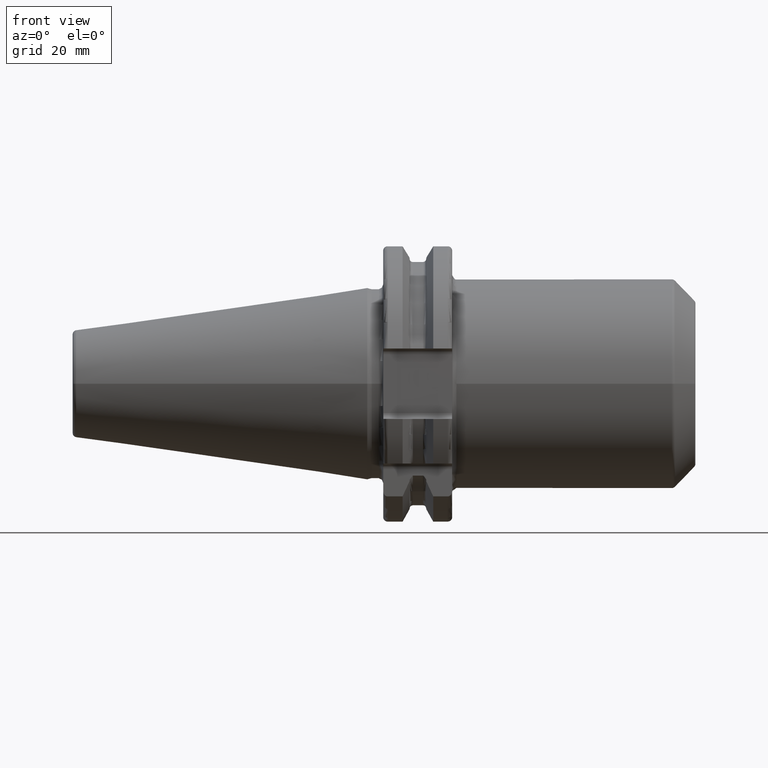
[diagram: clean part render]
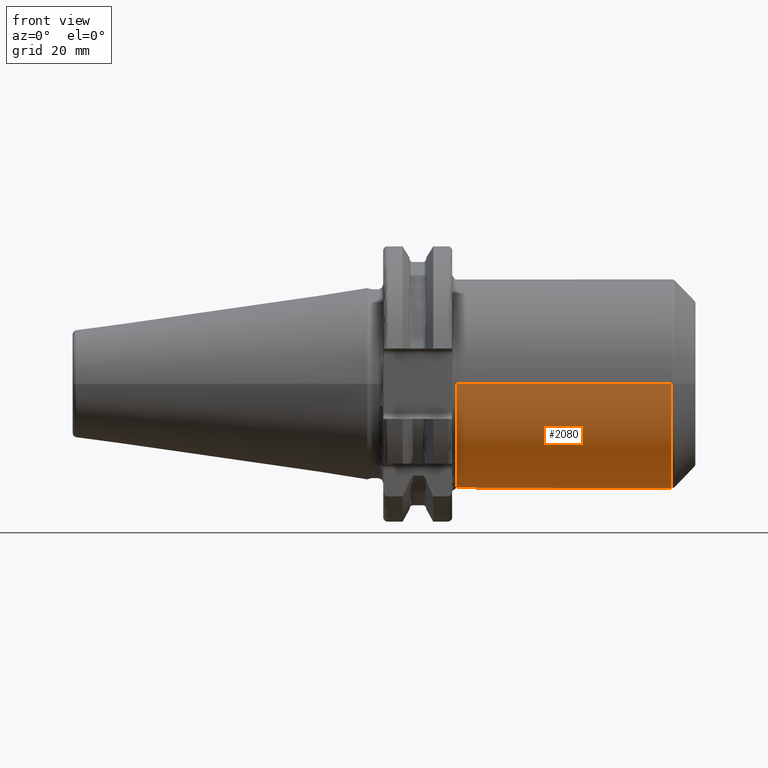
[diagram: same view with one face highlighted and labeled with its STEP entity id]
A machine part, front view. The second image highlights one B-rep face of the part: STEP entity #2080.
In plain terms, the highlighted cylindrical surface (partial cylindrical patch) has radius 24 mm, axis along (1, 0, 0).
Its self-contained STEP definition (entity closure, byte-faithful):
#318=DIRECTION('',(1.E0,0.E0,0.E0));
#319=VECTOR('',#318,7.1E0);
#320=CARTESIAN_POINT('',(2.005E1,2.255E1,-8.215686216014E0));
#321=LINE('',#320,#319);
#322=CARTESIAN_POINT('',(2.005E1,0.E0,0.E0));
#323=DIRECTION('',(1.E0,0.E0,0.E0));
#324=DIRECTION('',(0.E0,-1.E0,0.E0));
#325=AXIS2_PLACEMENT_3D('',#322,#323,#324);
#327=DIRECTION('',(-9.999999999942E-1,3.608921727415E-11,-3.414198783986E-6));
#328=VECTOR('',#327,4.953578643792E1);
#329=CARTESIAN_POINT('',(6.958578643763E1,-2.4E1,2.005392351092E-11));
#330=LINE('',#329,#328);
#331=CARTESIAN_POINT('',(6.958578643763E1,0.E0,0.E0));
#332=DIRECTION('',(-1.E0,0.E0,0.E0));
#333=DIRECTION('',(0.E0,1.E0,0.E0));
#334=AXIS2_PLACEMENT_3D('',#331,#332,#333);
#336=DIRECTION('',(-1.E0,0.E0,4.726708288364E-13));
#337=VECTOR('',#336,4.243578643763E1);
#338=CARTESIAN_POINT('',(6.958578643763E1,2.4E1,-2.005501467503E-11));
#339=LINE('',#338,#337);
#340=CARTESIAN_POINT('',(2.715E1,0.E0,0.E0));
#341=DIRECTION('',(1.E0,0.E0,0.E0));
#342=DIRECTION('',(0.E0,9.395833333333E-1,-3.423202590006E-1));
#343=AXIS2_PLACEMENT_3D('',#340,#341,#342);
#1614=CARTESIAN_POINT('',(6.958578643763E1,2.4E1,0.E0));
#1615=CARTESIAN_POINT('',(6.958578643763E1,-2.4E1,0.E0));
#1616=VERTEX_POINT('',#1614);
#1617=VERTEX_POINT('',#1615);
#1622=CARTESIAN_POINT('',(2.005E1,-2.399999999821E1,-1.691250017662E-4));
#1623=VERTEX_POINT('',#1622);
#1628=CARTESIAN_POINT('',(2.715E1,2.4E1,0.E0));
#1629=VERTEX_POINT('',#1628);
#1630=CARTESIAN_POINT('',(2.005E1,2.255E1,-8.215686216014E0));
#1631=CARTESIAN_POINT('',(2.715E1,2.255E1,-8.215686216014E0));
#1632=VERTEX_POINT('',#1630);
#1633=VERTEX_POINT('',#1631);
#2066=CARTESIAN_POINT('',(1.62525E1,0.E0,0.E0));
#2067=DIRECTION('',(1.E0,0.E0,0.E0));
#2068=DIRECTION('',(0.E0,-1.E0,0.E0));
#2069=AXIS2_PLACEMENT_3D('',#2066,#2067,#2068);
#2070=CYLINDRICAL_SURFACE('',#2069,2.4E1);
#2071=ORIENTED_EDGE('',*,*,#1802,.F.);
#2072=ORIENTED_EDGE('',*,*,#2031,.F.);
#2073=ORIENTED_EDGE('',*,*,#2048,.F.);
#2075=ORIENTED_EDGE('',*,*,#2074,.F.);
#2076=ORIENTED_EDGE('',*,*,#2044,.T.);
#2077=ORIENTED_EDGE('',*,*,#2061,.F.);
#2078=EDGE_LOOP('',(#2071,#2072,#2073,#2075,#2076,#2077));
#2079=FACE_OUTER_BOUND('',#2078,.F.);
#2080=ADVANCED_FACE('',(#2079),#2070,.T.);
#326=CIRCLE('',#325,2.4E1);
#335=CIRCLE('',#334,2.4E1);
#344=CIRCLE('',#343,2.4E1);
#1802=EDGE_CURVE('',#1632,#1633,#321,.T.);
#2031=EDGE_CURVE('',#1623,#1632,#326,.T.);
#2044=EDGE_CURVE('',#1616,#1629,#339,.T.);
#2048=EDGE_CURVE('',#1617,#1623,#330,.T.);
#2061=EDGE_CURVE('',#1633,#1629,#344,.T.);
#2074=EDGE_CURVE('',#1616,#1617,#335,.T.);